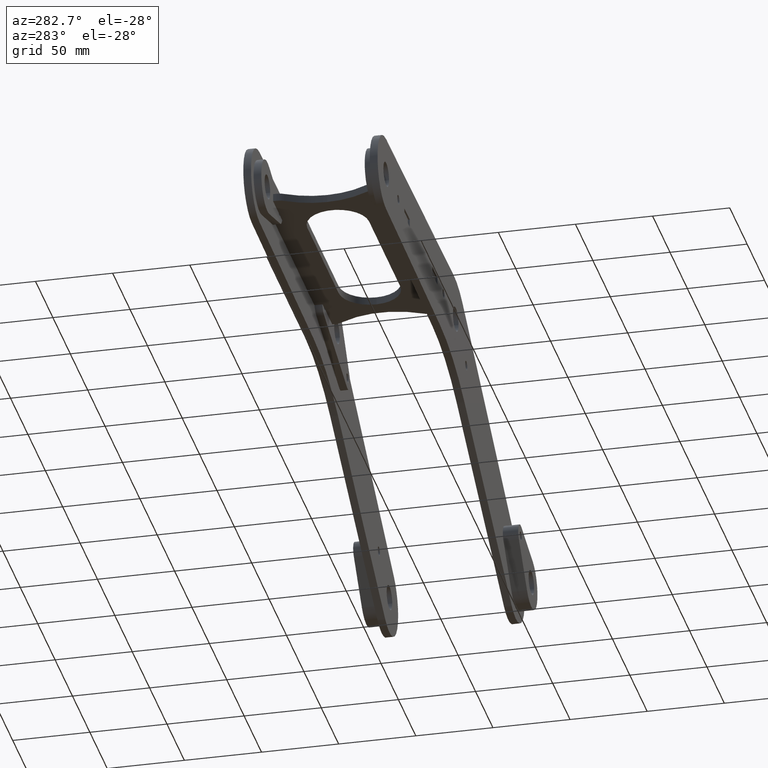
[diagram: clean part render]
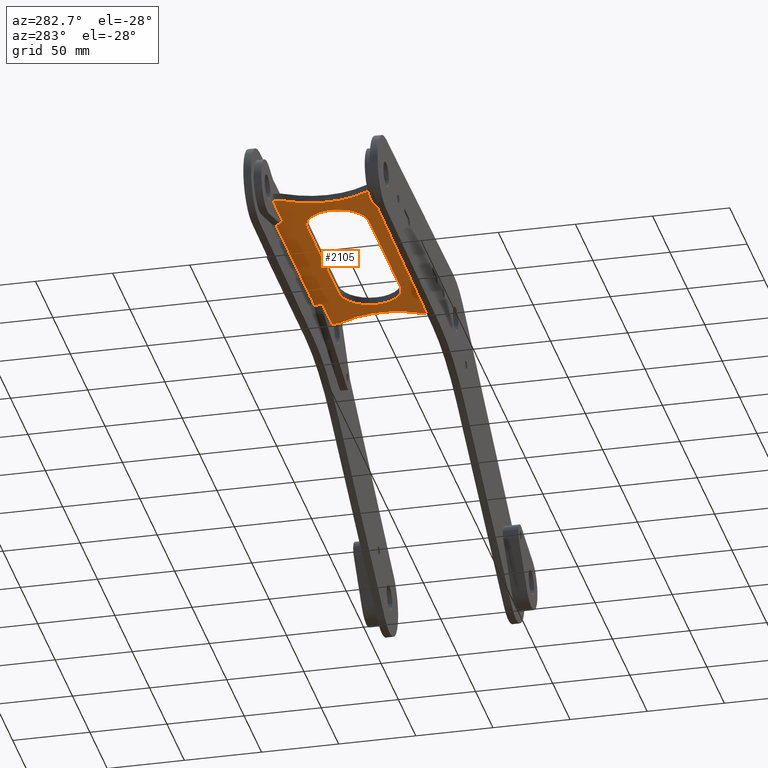
[diagram: same view with one face highlighted and labeled with its STEP entity id]
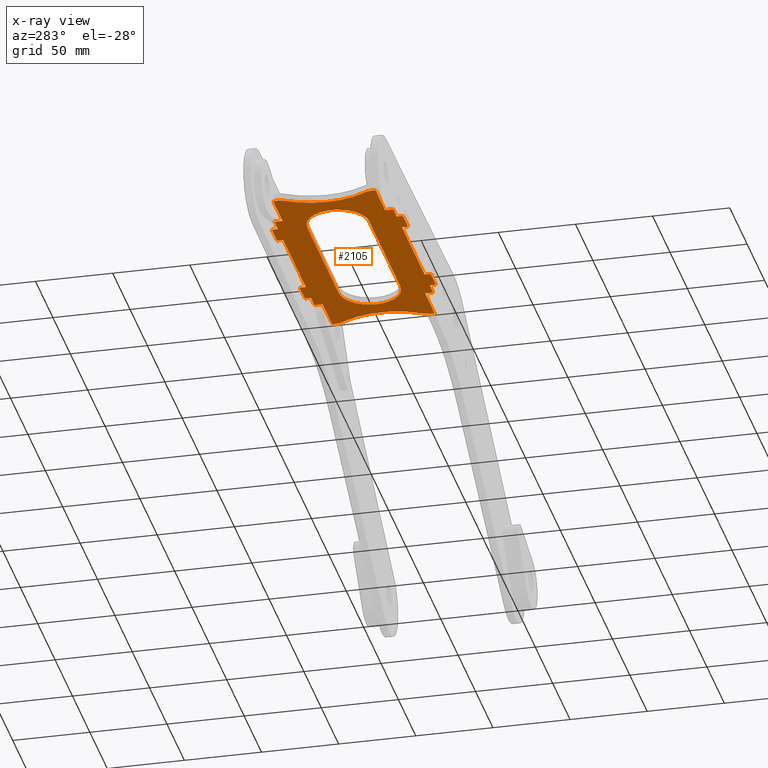
[diagram: x-ray of the same camera — body ghosted, the highlighted face saturated]
A machine part, auxiliary view. The second image highlights one B-rep face of the part: STEP entity #2105.
The next image is the same camera in x-ray: the body ghosted, the highlighted face saturated — about 4% of this face is hidden behind the body in this view.
In plain terms, the highlighted planar face has unit normal (0, 0, -1).
Its self-contained STEP definition (entity closure, byte-faithful):
#17 = LINE ( 'NONE', #369, #3777 ) ;
#22 = EDGE_CURVE ( 'NONE', #690, #3782, #2376, .T. ) ;
#29 = VERTEX_POINT ( 'NONE', #3441 ) ;
#36 = ORIENTED_EDGE ( 'NONE', *, *, #2665, .F. ) ;
#45 = DIRECTION ( 'NONE',  ( 1.000000000000000000, 0.000000000000000000, 0.000000000000000000 ) ) ;
#82 = ORIENTED_EDGE ( 'NONE', *, *, #1933, .T. ) ;
#83 = LINE ( 'NONE', #2133, #453 ) ;
#87 = DIRECTION ( 'NONE',  ( 0.000000000000000000, -1.000000000000000000, 0.000000000000000000 ) ) ;
#89 = CARTESIAN_POINT ( 'NONE',  ( -57.50000000000000711, 38.50000000000000000, -2.500000000000000000 ) ) ;
#109 = DIRECTION ( 'NONE',  ( 1.000000000000000000, 0.000000000000000000, 0.000000000000000000 ) ) ;
#126 = DIRECTION ( 'NONE',  ( 0.000000000000000000, 0.000000000000000000, 1.000000000000000000 ) ) ;
#127 = CARTESIAN_POINT ( 'NONE',  ( 47.50000000000000711, 42.49999999999999289, -2.500000000000000000 ) ) ;
#128 = CARTESIAN_POINT ( 'NONE',  ( 32.50000000000000711, 38.49999999999999289, -2.500000000000000000 ) ) ;
#136 = AXIS2_PLACEMENT_3D ( 'NONE', #1046, #674, #3702 ) ;
#138 = ORIENTED_EDGE ( 'NONE', *, *, #1784, .T. ) ;
#142 = CARTESIAN_POINT ( 'NONE',  ( 57.49999999999999289, 38.50000000000002842, -2.500000000000000000 ) ) ;
#145 = DIRECTION ( 'NONE',  ( -1.000000000000000000, -1.632680918566406547E-16, 0.000000000000000000 ) ) ;
#146 = VERTEX_POINT ( 'NONE', #142 ) ;
#153 = ORIENTED_EDGE ( 'NONE', *, *, #3496, .F. ) ;
#170 = ORIENTED_EDGE ( 'NONE', *, *, #424, .T. ) ;
#171 = CIRCLE ( 'NONE', #2736, 19.99999999999998224 ) ;
#182 = EDGE_CURVE ( 'NONE', #3797, #1893, #4012, .T. ) ;
#183 = CARTESIAN_POINT ( 'NONE',  ( -85.00000000000000000, 38.50000000000000000, -2.500000000000000000 ) ) ;
#193 = CARTESIAN_POINT ( 'NONE',  ( 57.49999999999999289, 38.50000000000002842, -2.500000000000000000 ) ) ;
#221 = CARTESIAN_POINT ( 'NONE',  ( -46.49999999999999289, 42.49999999999998579, -2.500000000000000000 ) ) ;
#237 = CARTESIAN_POINT ( 'NONE',  ( -32.49999999999999289, -41.49999999999999289, -2.500000000000000000 ) ) ;
#239 = EDGE_CURVE ( 'NONE', #4334, #687, #2527, .T. ) ;
#260 = CARTESIAN_POINT ( 'NONE',  ( 57.49999999999999289, -38.50000000000002842, -2.500000000000000000 ) ) ;
#271 = VERTEX_POINT ( 'NONE', #3844 ) ;
#279 = VERTEX_POINT ( 'NONE', #2148 ) ;
#286 = CARTESIAN_POINT ( 'NONE',  ( -32.49999999999999289, 42.49999999999999289, -2.500000000000000000 ) ) ;
#321 = CARTESIAN_POINT ( 'NONE',  ( 32.50000000000000711, 42.49999999999999289, -2.500000000000000000 ) ) ;
#322 = CARTESIAN_POINT ( 'NONE',  ( 85.00000000000000000, -33.19999999999997442, -2.500000000000000000 ) ) ;
#330 = EDGE_CURVE ( 'NONE', #640, #2117, #963, .T. ) ;
#334 = CARTESIAN_POINT ( 'NONE',  ( -32.49999999999999289, 41.49999999999999289, -2.500000000000000000 ) ) ;
#342 = EDGE_CURVE ( 'NONE', #1579, #2458, #680, .T. ) ;
#369 = CARTESIAN_POINT ( 'NONE',  ( -57.50000000000000711, 38.50000000000000000, -2.500000000000000000 ) ) ;
#385 = VERTEX_POINT ( 'NONE', #2281 ) ;
#391 = ORIENTED_EDGE ( 'NONE', *, *, #3876, .F. ) ;
#395 = DIRECTION ( 'NONE',  ( 1.000000000000000000, 1.927470528863120281E-16, 0.000000000000000000 ) ) ;
#400 = VERTEX_POINT ( 'NONE', #4014 ) ;
#419 = CIRCLE ( 'NONE', #1136, 1.000000000000000888 ) ;
#424 = EDGE_CURVE ( 'NONE', #2117, #876, #171, .T. ) ;
#437 = CARTESIAN_POINT ( 'NONE',  ( -84.99999999999997158, -31.13623632201861113, -2.500000000000000000 ) ) ;
#445 = VECTOR ( 'NONE', #1339, 1000.000000000000000 ) ;
#453 = VECTOR ( 'NONE', #145, 1000.000000000000000 ) ;
#467 = EDGE_CURVE ( 'NONE', #1859, #855, #3447, .T. ) ;
#478 = CARTESIAN_POINT ( 'NONE',  ( 44.99999999999997158, 3.081487911019577365E-30, -2.500000000000000000 ) ) ;
#484 = ORIENTED_EDGE ( 'NONE', *, *, #1952, .F. ) ;
#524 = VERTEX_POINT ( 'NONE', #819 ) ;
#545 = LINE ( 'NONE', #2907, #750 ) ;
#546 = EDGE_CURVE ( 'NONE', #2139, #1084, #545, .T. ) ;
#547 = DIRECTION ( 'NONE',  ( 0.000000000000000000, 0.000000000000000000, 1.000000000000000000 ) ) ;
#548 = CARTESIAN_POINT ( 'NONE',  ( -84.99999999999998579, -33.20000000000000284, -2.500000000000000000 ) ) ;
#554 = VERTEX_POINT ( 'NONE', #3533 ) ;
#567 = B_SPLINE_CURVE_WITH_KNOTS ( 'NONE', 1,
 ( #3200, #1863 ),
 .UNSPECIFIED., .F., .F.,
 ( 2, 2 ),
 ( 0.1500000000000000222, 0.4749999999999999778 ),
 .UNSPECIFIED. ) ;
#586 = CARTESIAN_POINT ( 'NONE',  ( 47.50000000000000711, -38.49999999999997868, -2.500000000000000000 ) ) ;
#605 = CARTESIAN_POINT ( 'NONE',  ( 85.00000000000000000, 38.50000000000002842, -2.500000000000000000 ) ) ;
#609 = LINE ( 'NONE', #4400, #445 ) ;
#640 = VERTEX_POINT ( 'NONE', #947 ) ;
#651 = CARTESIAN_POINT ( 'NONE',  ( 83.54812323082840919, -25.94686360168222095, -2.500000000000000000 ) ) ;
#661 = CARTESIAN_POINT ( 'NONE',  ( 85.00000000000000000, -33.19999999999997442, -2.500000000000000000 ) ) ;
#674 = DIRECTION ( 'NONE',  ( 0.000000000000000000, 0.000000000000000000, 1.000000000000000000 ) ) ;
#677 = VERTEX_POINT ( 'NONE', #4383 ) ;
#680 = CIRCLE ( 'NONE', #1234, 50.00000000000000000 ) ;
#687 = VERTEX_POINT ( 'NONE', #1404 ) ;
#688 = PLANE ( 'NONE',  #3931 ) ;
#690 = VERTEX_POINT ( 'NONE', #2993 ) ;
#702 = DIRECTION ( 'NONE',  ( 1.000000000000000000, 0.000000000000000000, 0.000000000000000000 ) ) ;
#709 = CIRCLE ( 'NONE', #2905, 9.999999999999994671 ) ;
#741 = CARTESIAN_POINT ( 'NONE',  ( 47.50000000000000711, 38.49999999999999289, -2.500000000000000000 ) ) ;
#742 = VECTOR ( 'NONE', #2866, 1000.000000000000000 ) ;
#745 = VECTOR ( 'NONE', #1146, 1000.000000000000000 ) ;
#746 = ORIENTED_EDGE ( 'NONE', *, *, #782, .T. ) ;
#748 = CARTESIAN_POINT ( 'NONE',  ( -46.49999999999999289, -42.49999999999998579, -2.500000000000000000 ) ) ;
#750 = VECTOR ( 'NONE', #3870, 1000.000000000000000 ) ;
#754 = VERTEX_POINT ( 'NONE', #748 ) ;
#770 = CARTESIAN_POINT ( 'NONE',  ( 46.50000000000000711, -41.49999999999999289, -2.500000000000000000 ) ) ;
#773 = DIRECTION ( 'NONE',  ( 1.000000000000000000, 0.000000000000000000, 0.000000000000000000 ) ) ;
#775 = CARTESIAN_POINT ( 'NONE',  ( -33.49999999999999289, 41.49999999999999289, -2.500000000000000000 ) ) ;
#782 = EDGE_CURVE ( 'NONE', #524, #385, #1649, .T. ) ;
#790 = CARTESIAN_POINT ( 'NONE',  ( 75.00000000000001421, 31.13623632201864666, -2.500000000000000000 ) ) ;
#793 = CARTESIAN_POINT ( 'NONE',  ( -83.54812323082838077, -25.94686360168217831, -2.500000000000000000 ) ) ;
#801 = ORIENTED_EDGE ( 'NONE', *, *, #1788, .T. ) ;
#819 = CARTESIAN_POINT ( 'NONE',  ( -83.54812323082839498, 25.94686360168220318, -2.500000000000000000 ) ) ;
#820 = LINE ( 'NONE', #4203, #2011 ) ;
#840 = CARTESIAN_POINT ( 'NONE',  ( -46.49999999999999289, 41.49999999999999289, -2.500000000000000000 ) ) ;
#855 = VERTEX_POINT ( 'NONE', #1763 ) ;
#861 = DIRECTION ( 'NONE',  ( 1.000000000000000000, 0.000000000000000000, 0.000000000000000000 ) ) ;
#869 = VECTOR ( 'NONE', #1350, 1000.000000000000000 ) ;
#875 = AXIS2_PLACEMENT_3D ( 'NONE', #775, #126, #109 ) ;
#876 = VERTEX_POINT ( 'NONE', #3187 ) ;
#878 = CARTESIAN_POINT ( 'NONE',  ( 75.00000000000001421, -31.13623632201866798, -2.500000000000000000 ) ) ;
#879 = ORIENTED_EDGE ( 'NONE', *, *, #2815, .F. ) ;
#898 = DIRECTION ( 'NONE',  ( 0.000000000000000000, 0.000000000000000000, 1.000000000000000000 ) ) ;
#922 = LINE ( 'NONE', #3555, #3012 ) ;
#923 = EDGE_LOOP ( 'NONE', ( #170, #1947, #801, #3424, #3139 ) ) ;
#940 = VECTOR ( 'NONE', #3220, 1000.000000000000000 ) ;
#943 = DIRECTION ( 'NONE',  ( 1.000000000000000000, 0.000000000000000000, 0.000000000000000000 ) ) ;
#947 = CARTESIAN_POINT ( 'NONE',  ( 44.99999999999995737, 20.00000000000000000, -2.500000000000000000 ) ) ;
#948 = CARTESIAN_POINT ( 'NONE',  ( 33.50000000000000711, -42.49999999999998579, -2.500000000000000000 ) ) ;
#949 = VECTOR ( 'NONE', #943, 1000.000000000000000 ) ;
#963 = LINE ( 'NONE', #1653, #3162 ) ;
#971 = FACE_OUTER_BOUND ( 'NONE', #2240, .T. ) ;
#996 = CARTESIAN_POINT ( 'NONE',  ( 46.50000000000000711, -42.49999999999998579, -2.500000000000000000 ) ) ;
#1001 = CARTESIAN_POINT ( 'NONE',  ( -126.2887393849703415, 0.000000000000000000, -2.500000000000000000 ) ) ;
#1005 = EDGE_CURVE ( 'NONE', #3328, #29, #2943, .T. ) ;
#1018 = CIRCLE ( 'NONE', #3287, 19.99999999999997513 ) ;
#1019 = LINE ( 'NONE', #2403, #3550 ) ;
#1046 = CARTESIAN_POINT ( 'NONE',  ( -126.2887393849703415, 0.000000000000000000, -2.500000000000000000 ) ) ;
#1058 = DIRECTION ( 'NONE',  ( 1.000000000000000000, -0.000000000000000000, -0.000000000000000000 ) ) ;
#1067 = CARTESIAN_POINT ( 'NONE',  ( -47.49999999999999289, 38.49999999999999289, -2.500000000000000000 ) ) ;
#1077 = ORIENTED_EDGE ( 'NONE', *, *, #342, .F. ) ;
#1084 = VERTEX_POINT ( 'NONE', #2721 ) ;
#1088 = LINE ( 'NONE', #2429, #3999 ) ;
#1098 = CARTESIAN_POINT ( 'NONE',  ( 57.49999999999999289, -33.19999999999997442, -2.500000000000000000 ) ) ;
#1100 = CIRCLE ( 'NONE', #3225, 9.999999999999994671 ) ;
#1110 = LINE ( 'NONE', #2152, #742 ) ;
#1113 = DIRECTION ( 'NONE',  ( 1.000000000000000000, 1.632680918566406793E-16, -0.000000000000000000 ) ) ;
#1119 = DIRECTION ( 'NONE',  ( 0.000000000000000000, -0.000000000000000000, -1.000000000000000000 ) ) ;
#1136 = AXIS2_PLACEMENT_3D ( 'NONE', #2357, #2426, #45 ) ;
#1140 = CARTESIAN_POINT ( 'NONE',  ( 85.00000000000000000, 38.50000000000002842, -2.500000000000000000 ) ) ;
#1146 = DIRECTION ( 'NONE',  ( 1.000000000000000000, 0.000000000000000000, 0.000000000000000000 ) ) ;
#1153 = CARTESIAN_POINT ( 'NONE',  ( -44.99999999999997158, -19.99999999999998224, -2.500000000000000000 ) ) ;
#1181 = DIRECTION ( 'NONE',  ( 1.000000000000000000, 1.632680918566406793E-16, -0.000000000000000000 ) ) ;
#1183 = CARTESIAN_POINT ( 'NONE',  ( -47.49999999999999289, 41.49999999999999289, -2.500000000000000000 ) ) ;
#1191 = ORIENTED_EDGE ( 'NONE', *, *, #1834, .F. ) ;
#1205 = ORIENTED_EDGE ( 'NONE', *, *, #2109, .F. ) ;
#1225 = VECTOR ( 'NONE', #87, 1000.000000000000000 ) ;
#1234 = AXIS2_PLACEMENT_3D ( 'NONE', #3946, #3924, #3988 ) ;
#1247 = ORIENTED_EDGE ( 'NONE', *, *, #1005, .F. ) ;
#1249 = CARTESIAN_POINT ( 'NONE',  ( -84.99999999999998579, 33.20000000000000284, -2.500000000000000000 ) ) ;
#1255 = ORIENTED_EDGE ( 'NONE', *, *, #3279, .F. ) ;
#1256 = VERTEX_POINT ( 'NONE', #334 ) ;
#1261 = LINE ( 'NONE', #1908, #2377 ) ;
#1278 = EDGE_CURVE ( 'NONE', #754, #2278, #1797, .T. ) ;
#1286 = ORIENTED_EDGE ( 'NONE', *, *, #2544, .F. ) ;
#1312 = EDGE_CURVE ( 'NONE', #2587, #4017, #1759, .T. ) ;
#1320 = ORIENTED_EDGE ( 'NONE', *, *, #1963, .T. ) ;
#1325 = DIRECTION ( 'NONE',  ( 0.000000000000000000, -1.000000000000000000, 0.000000000000000000 ) ) ;
#1339 = DIRECTION ( 'NONE',  ( 0.000000000000000000, -1.000000000000000000, 0.000000000000000000 ) ) ;
#1347 = ORIENTED_EDGE ( 'NONE', *, *, #4250, .T. ) ;
#1350 = DIRECTION ( 'NONE',  ( 0.000000000000000000, -1.000000000000000000, 0.000000000000000000 ) ) ;
#1356 = CARTESIAN_POINT ( 'NONE',  ( -46.49999999999999289, -41.49999999999999289, -2.500000000000000000 ) ) ;
#1370 = VERTEX_POINT ( 'NONE', #1098 ) ;
#1381 = VECTOR ( 'NONE', #1058, 1000.000000000000000 ) ;
#1383 = VERTEX_POINT ( 'NONE', #741 ) ;
#1404 = CARTESIAN_POINT ( 'NONE',  ( -57.50000000000000711, 33.20000000000000284, -2.500000000000000000 ) ) ;
#1406 = DIRECTION ( 'NONE',  ( -1.000000000000000000, 0.000000000000000000, 0.000000000000000000 ) ) ;
#1420 = CARTESIAN_POINT ( 'NONE',  ( 46.50000000000000711, 42.49999999999998579, -2.500000000000000000 ) ) ;
#1449 = VECTOR ( 'NONE', #773, 1000.000000000000000 ) ;
#1455 = CARTESIAN_POINT ( 'NONE',  ( 44.99999999999997158, 3.081487911019577365E-30, -2.500000000000000000 ) ) ;
#1457 = DIRECTION ( 'NONE',  ( 1.000000000000000000, 0.000000000000000000, 0.000000000000000000 ) ) ;
#1463 = CARTESIAN_POINT ( 'NONE',  ( 33.50000000000000711, -42.49999999999998579, -2.500000000000000000 ) ) ;
#1469 = VERTEX_POINT ( 'NONE', #3652 ) ;
#1480 = VERTEX_POINT ( 'NONE', #2581 ) ;
#1487 = LINE ( 'NONE', #127, #1225 ) ;
#1503 = VERTEX_POINT ( 'NONE', #1183 ) ;
#1515 = AXIS2_PLACEMENT_3D ( 'NONE', #3459, #3565, #2896 ) ;
#1523 = AXIS2_PLACEMENT_3D ( 'NONE', #3242, #898, #3262 ) ;
#1542 = ORIENTED_EDGE ( 'NONE', *, *, #2114, .T. ) ;
#1562 = CARTESIAN_POINT ( 'NONE',  ( -44.99999999999997158, -1.653273178848925447E-14, -2.500000000000000000 ) ) ;
#1579 = VERTEX_POINT ( 'NONE', #651 ) ;
#1624 = CIRCLE ( 'NONE', #136, 50.00000000000000000 ) ;
#1628 = DIRECTION ( 'NONE',  ( -1.802310104910968394E-16, 1.000000000000000000, -0.000000000000000000 ) ) ;
#1649 = CIRCLE ( 'NONE', #3923, 9.999999999999994671 ) ;
#1653 = CARTESIAN_POINT ( 'NONE',  ( -44.99999999999997158, 19.99999999999998224, -2.500000000000000000 ) ) ;
#1655 = CIRCLE ( 'NONE', #2579, 1.000000000000000888 ) ;
#1656 = LINE ( 'NONE', #321, #1939 ) ;
#1676 = EDGE_CURVE ( 'NONE', #1256, #400, #3337, .T. ) ;
#1680 = EDGE_CURVE ( 'NONE', #271, #524, #3927, .T. ) ;
#1685 = DIRECTION ( 'NONE',  ( 1.000000000000000000, 0.000000000000000000, 0.000000000000000000 ) ) ;
#1717 = ORIENTED_EDGE ( 'NONE', *, *, #3463, .F. ) ;
#1759 = LINE ( 'NONE', #1140, #2649 ) ;
#1763 = CARTESIAN_POINT ( 'NONE',  ( 32.50000000000000711, 41.49999999999999289, -2.500000000000000000 ) ) ;
#1771 = VECTOR ( 'NONE', #2246, 1000.000000000000000 ) ;
#1772 = LINE ( 'NONE', #3824, #2169 ) ;
#1776 = DIRECTION ( 'NONE',  ( -0.000000000000000000, 1.000000000000000000, -0.000000000000000000 ) ) ;
#1784 = EDGE_CURVE ( 'NONE', #279, #1480, #1088, .T. ) ;
#1788 = EDGE_CURVE ( 'NONE', #3138, #3446, #1018, .T. ) ;
#1795 = CARTESIAN_POINT ( 'NONE',  ( -74.99999999999998579, -31.13623632201861113, -2.500000000000000000 ) ) ;
#1797 = CIRCLE ( 'NONE', #2719, 1.000000000000000888 ) ;
#1808 = CIRCLE ( 'NONE', #3511, 9.999999999999994671 ) ;
#1815 = EDGE_CURVE ( 'NONE', #4156, #1383, #1487, .T. ) ;
#1824 = ORIENTED_EDGE ( 'NONE', *, *, #467, .F. ) ;
#1834 = EDGE_CURVE ( 'NONE', #554, #1480, #820, .T. ) ;
#1836 = DIRECTION ( 'NONE',  ( 3.604620209821936788E-16, -1.000000000000000000, 0.000000000000000000 ) ) ;
#1841 = EDGE_CURVE ( 'NONE', #876, #3138, #3449, .T. ) ;
#1859 = VERTEX_POINT ( 'NONE', #2469 ) ;
#1863 = CARTESIAN_POINT ( 'NONE',  ( 46.50000000000000711, 42.49999999999998579, -2.500000000000000000 ) ) ;
#1882 = VERTEX_POINT ( 'NONE', #237 ) ;
#1893 = VERTEX_POINT ( 'NONE', #3622 ) ;
#1908 = CARTESIAN_POINT ( 'NONE',  ( 85.00000000000001421, -38.49999999999997158, -2.500000000000000000 ) ) ;
#1922 = DIRECTION ( 'NONE',  ( 0.000000000000000000, -0.000000000000000000, -1.000000000000000000 ) ) ;
#1927 = CARTESIAN_POINT ( 'NONE',  ( -47.49999999999999289, -42.49999999999999289, -2.500000000000000000 ) ) ;
#1933 = EDGE_CURVE ( 'NONE', #2567, #279, #2868, .T. ) ;
#1934 = CARTESIAN_POINT ( 'NONE',  ( 57.49999999999999289, -38.50000000000002842, -2.500000000000000000 ) ) ;
#1939 = VECTOR ( 'NONE', #4018, 1000.000000000000000 ) ;
#1942 = ORIENTED_EDGE ( 'NONE', *, *, #2915, .T. ) ;
#1945 = EDGE_CURVE ( 'NONE', #1469, #3782, #3891, .T. ) ;
#1947 = ORIENTED_EDGE ( 'NONE', *, *, #1841, .T. ) ;
#1949 = AXIS2_PLACEMENT_3D ( 'NONE', #770, #2194, #1457 ) ;
#1952 = EDGE_CURVE ( 'NONE', #3658, #1503, #1655, .T. ) ;
#1961 = DIRECTION ( 'NONE',  ( 0.000000000000000000, 0.000000000000000000, 1.000000000000000000 ) ) ;
#1963 = EDGE_CURVE ( 'NONE', #146, #690, #2224, .T. ) ;
#1971 = CARTESIAN_POINT ( 'NONE',  ( -44.99999999999997158, 19.99999999999998224, -2.500000000000000000 ) ) ;
#1996 = CARTESIAN_POINT ( 'NONE',  ( -57.50000000000000711, -38.50000000000000000, -2.500000000000000000 ) ) ;
#2000 = CARTESIAN_POINT ( 'NONE',  ( 47.50000000000000711, -41.49999999999999289, -2.500000000000000000 ) ) ;
#2008 = AXIS2_PLACEMENT_3D ( 'NONE', #1001, #2386, #1685 ) ;
#2011 = VECTOR ( 'NONE', #1113, 1000.000000000000000 ) ;
#2027 = ORIENTED_EDGE ( 'NONE', *, *, #3369, .F. ) ;
#2030 = EDGE_CURVE ( 'NONE', #3714, #1370, #2994, .T. ) ;
#2049 = ORIENTED_EDGE ( 'NONE', *, *, #4199, .F. ) ;
#2073 = ORIENTED_EDGE ( 'NONE', *, *, #3838, .T. ) ;
#2105 = ADVANCED_FACE ( 'NONE', ( #2641, #971 ), #688, .T. ) ;
#2109 = EDGE_CURVE ( 'NONE', #2567, #1893, #3416, .T. ) ;
#2114 = EDGE_CURVE ( 'NONE', #3658, #2710, #4212, .T. ) ;
#2116 = ORIENTED_EDGE ( 'NONE', *, *, #1676, .T. ) ;
#2117 = VERTEX_POINT ( 'NONE', #1971 ) ;
#2133 = CARTESIAN_POINT ( 'NONE',  ( 85.00000000000000000, 38.50000000000002842, -2.500000000000000000 ) ) ;
#2134 = ORIENTED_EDGE ( 'NONE', *, *, #2771, .F. ) ;
#2139 = VERTEX_POINT ( 'NONE', #1996 ) ;
#2148 = CARTESIAN_POINT ( 'NONE',  ( 32.50000000000000711, -41.49999999999999289, -2.500000000000000000 ) ) ;
#2152 = CARTESIAN_POINT ( 'NONE',  ( 85.00000000000000000, 38.50000000000002842, -2.500000000000000000 ) ) ;
#2169 = VECTOR ( 'NONE', #1836, 1000.000000000000000 ) ;
#2194 = DIRECTION ( 'NONE',  ( 0.000000000000000000, -0.000000000000000000, -1.000000000000000000 ) ) ;
#2223 = EDGE_CURVE ( 'NONE', #2906, #3714, #1261, .T. ) ;
#2224 = LINE ( 'NONE', #193, #3435 ) ;
#2229 = VECTOR ( 'NONE', #4065, 1000.000000000000000 ) ;
#2234 = ORIENTED_EDGE ( 'NONE', *, *, #1680, .T. ) ;
#2240 = EDGE_LOOP ( 'NONE', ( #1077, #1942, #1247, #2885, #2617, #4009, #391, #3972, #1205, #82, #138, #1191, #2472, #1347, #36, #2963, #3784, #4382, #2049, #2134, #2768, #3529, #2073, #2234, #746, #153, #2731, #3131, #4346, #2027, #484, #1542, #1286, #2116, #2988, #1255, #1824, #4280, #1717, #4171, #879, #1320, #2285, #2735, #3944 ) ) ;
#2246 = DIRECTION ( 'NONE',  ( -0.000000000000000000, 1.000000000000000000, -0.000000000000000000 ) ) ;
#2278 = VERTEX_POINT ( 'NONE', #2875 ) ;
#2281 = CARTESIAN_POINT ( 'NONE',  ( -85.00000000000000000, 31.13623632201864311, -2.500000000000000000 ) ) ;
#2285 = ORIENTED_EDGE ( 'NONE', *, *, #22, .T. ) ;
#2324 = VERTEX_POINT ( 'NONE', #3204 ) ;
#2333 = DIRECTION ( 'NONE',  ( -1.000000000000000000, 0.000000000000000000, 0.000000000000000000 ) ) ;
#2334 = DIRECTION ( 'NONE',  ( 0.000000000000000000, 0.000000000000000000, -1.000000000000000000 ) ) ;
#2357 = CARTESIAN_POINT ( 'NONE',  ( -33.49999999999999289, -41.49999999999999289, -2.500000000000000000 ) ) ;
#2376 = LINE ( 'NONE', #4087, #1381 ) ;
#2377 = VECTOR ( 'NONE', #1181, 1000.000000000000000 ) ;
#2386 = DIRECTION ( 'NONE',  ( 0.000000000000000000, 0.000000000000000000, 1.000000000000000000 ) ) ;
#2402 = CARTESIAN_POINT ( 'NONE',  ( -46.49999999999999289, 42.49999999999998579, -2.500000000000000000 ) ) ;
#2403 = CARTESIAN_POINT ( 'NONE',  ( -57.50000000000000711, -38.50000000000000000, -2.500000000000000000 ) ) ;
#2421 = CARTESIAN_POINT ( 'NONE',  ( 64.99999999999995737, 3.081487911019577365E-30, -2.500000000000000000 ) ) ;
#2426 = DIRECTION ( 'NONE',  ( 0.000000000000000000, -0.000000000000000000, -1.000000000000000000 ) ) ;
#2429 = CARTESIAN_POINT ( 'NONE',  ( 32.50000000000000711, -42.49999999999999289, -2.500000000000000000 ) ) ;
#2458 = VERTEX_POINT ( 'NONE', #2712 ) ;
#2469 = CARTESIAN_POINT ( 'NONE',  ( 33.50000000000000711, 42.49999999999998579, -2.500000000000000000 ) ) ;
#2472 = ORIENTED_EDGE ( 'NONE', *, *, #2941, .F. ) ;
#2480 = LINE ( 'NONE', #183, #2509 ) ;
#2509 = VECTOR ( 'NONE', #3125, 1000.000000000000000 ) ;
#2527 = LINE ( 'NONE', #3548, #745 ) ;
#2530 = LINE ( 'NONE', #3174, #1449 ) ;
#2533 = CARTESIAN_POINT ( 'NONE',  ( 85.00000000000000000, 38.50000000000002842, -2.500000000000000000 ) ) ;
#2544 = EDGE_CURVE ( 'NONE', #1256, #2710, #4151, .T. ) ;
#2567 = VERTEX_POINT ( 'NONE', #1463 ) ;
#2579 = AXIS2_PLACEMENT_3D ( 'NONE', #840, #547, #4248 ) ;
#2581 = CARTESIAN_POINT ( 'NONE',  ( 32.50000000000000711, -38.49999999999997868, -2.500000000000000000 ) ) ;
#2587 = VERTEX_POINT ( 'NONE', #1067 ) ;
#2617 = ORIENTED_EDGE ( 'NONE', *, *, #2030, .F. ) ;
#2625 = VECTOR ( 'NONE', #3468, 1000.000000000000000 ) ;
#2641 = FACE_BOUND ( 'NONE', #923, .T. ) ;
#2649 = VECTOR ( 'NONE', #2876, 1000.000000000000000 ) ;
#2665 = EDGE_CURVE ( 'NONE', #754, #2324, #3393, .T. ) ;
#2704 = EDGE_CURVE ( 'NONE', #3943, #4053, #1772, .T. ) ;
#2710 = VERTEX_POINT ( 'NONE', #3530 ) ;
#2712 = CARTESIAN_POINT ( 'NONE',  ( 83.54812323082839498, 25.94686360168220318, -2.500000000000000000 ) ) ;
#2718 = EDGE_CURVE ( 'NONE', #3943, #2822, #1100, .T. ) ;
#2719 = AXIS2_PLACEMENT_3D ( 'NONE', #1356, #1119, #2856 ) ;
#2721 = CARTESIAN_POINT ( 'NONE',  ( -47.49999999999998579, -38.49999999999999289, -2.500000000000000000 ) ) ;
#2723 = CIRCLE ( 'NONE', #1515, 1.000000000000000888 ) ;
#2731 = ORIENTED_EDGE ( 'NONE', *, *, #239, .T. ) ;
#2732 = CARTESIAN_POINT ( 'NONE',  ( 0.000000000000000000, 0.000000000000000000, -2.500000000000000000 ) ) ;
#2735 = ORIENTED_EDGE ( 'NONE', *, *, #1945, .F. ) ;
#2736 = AXIS2_PLACEMENT_3D ( 'NONE', #1562, #1961, #2921 ) ;
#2768 = ORIENTED_EDGE ( 'NONE', *, *, #2704, .F. ) ;
#2771 = EDGE_CURVE ( 'NONE', #4053, #677, #2530, .T. ) ;
#2797 = EDGE_CURVE ( 'NONE', #3894, #400, #83, .T. ) ;
#2805 = CARTESIAN_POINT ( 'NONE',  ( -33.49999999999999289, -42.49999999999998579, -2.500000000000000000 ) ) ;
#2815 = EDGE_CURVE ( 'NONE', #146, #1383, #1110, .T. ) ;
#2822 = VERTEX_POINT ( 'NONE', #793 ) ;
#2824 = DIRECTION ( 'NONE',  ( 0.000000000000000000, -0.000000000000000000, -1.000000000000000000 ) ) ;
#2848 = CARTESIAN_POINT ( 'NONE',  ( -46.49999999999999289, -42.49999999999998579, -2.500000000000000000 ) ) ;
#2856 = DIRECTION ( 'NONE',  ( 1.000000000000000000, 0.000000000000000000, 0.000000000000000000 ) ) ;
#2866 = DIRECTION ( 'NONE',  ( -1.000000000000000000, -1.632680918566406547E-16, 0.000000000000000000 ) ) ;
#2868 = CIRCLE ( 'NONE', #3218, 1.000000000000000888 ) ;
#2875 = CARTESIAN_POINT ( 'NONE',  ( -47.49999999999999289, -41.49999999999999289, -2.500000000000000000 ) ) ;
#2876 = DIRECTION ( 'NONE',  ( -1.000000000000000000, -1.632680918566406547E-16, 0.000000000000000000 ) ) ;
#2885 = ORIENTED_EDGE ( 'NONE', *, *, #3132, .F. ) ;
#2896 = DIRECTION ( 'NONE',  ( 1.000000000000000000, 0.000000000000000000, 0.000000000000000000 ) ) ;
#2905 = AXIS2_PLACEMENT_3D ( 'NONE', #790, #3481, #1406 ) ;
#2906 = VERTEX_POINT ( 'NONE', #586 ) ;
#2907 = CARTESIAN_POINT ( 'NONE',  ( 85.00000000000001421, -38.49999999999997158, -2.500000000000000000 ) ) ;
#2915 = EDGE_CURVE ( 'NONE', #1579, #29, #1808, .T. ) ;
#2921 = DIRECTION ( 'NONE',  ( 1.000000000000000000, 0.000000000000000000, 0.000000000000000000 ) ) ;
#2924 = DIRECTION ( 'NONE',  ( -1.000000000000000000, 0.000000000000000000, 0.000000000000000000 ) ) ;
#2941 = EDGE_CURVE ( 'NONE', #1882, #554, #922, .T. ) ;
#2943 = LINE ( 'NONE', #605, #4139 ) ;
#2963 = ORIENTED_EDGE ( 'NONE', *, *, #1278, .T. ) ;
#2973 = LINE ( 'NONE', #1927, #1771 ) ;
#2988 = ORIENTED_EDGE ( 'NONE', *, *, #2797, .F. ) ;
#2993 = CARTESIAN_POINT ( 'NONE',  ( 57.49999999999999289, 33.19999999999997442, -2.500000000000000000 ) ) ;
#2994 = LINE ( 'NONE', #260, #2229 ) ;
#3012 = VECTOR ( 'NONE', #3929, 1000.000000000000000 ) ;
#3077 = VECTOR ( 'NONE', #395, 1000.000000000000000 ) ;
#3108 = DIRECTION ( 'NONE',  ( -1.000000000000000000, 0.000000000000000000, 0.000000000000000000 ) ) ;
#3111 = DIRECTION ( 'NONE',  ( 1.000000000000000000, 0.000000000000000000, 0.000000000000000000 ) ) ;
#3112 = CARTESIAN_POINT ( 'NONE',  ( 85.00000000000000000, 33.19999999999997442, -2.500000000000000000 ) ) ;
#3125 = DIRECTION ( 'NONE',  ( 3.604620209821936788E-16, -1.000000000000000000, 0.000000000000000000 ) ) ;
#3131 = ORIENTED_EDGE ( 'NONE', *, *, #4186, .T. ) ;
#3132 = EDGE_CURVE ( 'NONE', #1370, #3328, #4060, .T. ) ;
#3138 = VERTEX_POINT ( 'NONE', #3419 ) ;
#3139 = ORIENTED_EDGE ( 'NONE', *, *, #330, .T. ) ;
#3162 = VECTOR ( 'NONE', #3255, 1000.000000000000000 ) ;
#3174 = CARTESIAN_POINT ( 'NONE',  ( -84.99999999999998579, -33.20000000000000284, -2.500000000000000000 ) ) ;
#3187 = CARTESIAN_POINT ( 'NONE',  ( -44.99999999999997158, -19.99999999999998224, -2.500000000000000000 ) ) ;
#3200 = CARTESIAN_POINT ( 'NONE',  ( 33.50000000000000711, 42.49999999999998579, -2.500000000000000000 ) ) ;
#3204 = CARTESIAN_POINT ( 'NONE',  ( -33.49999999999999289, -42.49999999999998579, -2.500000000000000000 ) ) ;
#3218 = AXIS2_PLACEMENT_3D ( 'NONE', #3933, #3601, #861 ) ;
#3220 = DIRECTION ( 'NONE',  ( -1.802310104910968394E-16, 1.000000000000000000, -0.000000000000000000 ) ) ;
#3225 = AXIS2_PLACEMENT_3D ( 'NONE', #1795, #2824, #3108 ) ;
#3242 = CARTESIAN_POINT ( 'NONE',  ( 33.50000000000000711, 41.49999999999999289, -2.500000000000000000 ) ) ;
#3255 = DIRECTION ( 'NONE',  ( -1.000000000000000000, -1.927470528863120528E-16, -0.000000000000000000 ) ) ;
#3262 = DIRECTION ( 'NONE',  ( 1.000000000000000000, 0.000000000000000000, 0.000000000000000000 ) ) ;
#3279 = EDGE_CURVE ( 'NONE', #855, #3894, #1656, .T. ) ;
#3287 = AXIS2_PLACEMENT_3D ( 'NONE', #478, #3514, #3111 ) ;
#3288 = CARTESIAN_POINT ( 'NONE',  ( 47.50000000000000711, 41.49999999999999289, -2.500000000000000000 ) ) ;
#3328 = VERTEX_POINT ( 'NONE', #661 ) ;
#3337 = LINE ( 'NONE', #286, #869 ) ;
#3360 = AXIS2_PLACEMENT_3D ( 'NONE', #1455, #4174, #702 ) ;
#3369 = EDGE_CURVE ( 'NONE', #1503, #2587, #609, .T. ) ;
#3379 = DIRECTION ( 'NONE',  ( -0.000000000000000000, 1.000000000000000000, -0.000000000000000000 ) ) ;
#3388 = EDGE_CURVE ( 'NONE', #3446, #640, #4288, .T. ) ;
#3393 = B_SPLINE_CURVE_WITH_KNOTS ( 'NONE', 1,
 ( #2848, #2805 ),
 .UNSPECIFIED., .F., .F.,
 ( 2, 2 ),
 ( 0.1500000000000000222, 0.4749999999999999778 ),
 .UNSPECIFIED. ) ;
#3416 = B_SPLINE_CURVE_WITH_KNOTS ( 'NONE', 1,
 ( #948, #996 ),
 .UNSPECIFIED., .F., .F.,
 ( 2, 2 ),
 ( 0.1500000000000000222, 0.4749999999999999778 ),
 .UNSPECIFIED. ) ;
#3419 = CARTESIAN_POINT ( 'NONE',  ( 44.99999999999998579, -19.99999999999996803, -2.500000000000000000 ) ) ;
#3424 = ORIENTED_EDGE ( 'NONE', *, *, #3388, .T. ) ;
#3435 = VECTOR ( 'NONE', #3952, 1000.000000000000000 ) ;
#3441 = CARTESIAN_POINT ( 'NONE',  ( 85.00000000000001421, -31.13623632201866798, -2.500000000000000000 ) ) ;
#3446 = VERTEX_POINT ( 'NONE', #2421 ) ;
#3447 = CIRCLE ( 'NONE', #1523, 1.000000000000000888 ) ;
#3449 = LINE ( 'NONE', #1153, #3077 ) ;
#3458 = CARTESIAN_POINT ( 'NONE',  ( -75.00000000000001421, 31.13623632201864666, -2.500000000000000000 ) ) ;
#3459 = CARTESIAN_POINT ( 'NONE',  ( 46.50000000000000711, 41.49999999999999289, -2.500000000000000000 ) ) ;
#3463 = EDGE_CURVE ( 'NONE', #4156, #3875, #2723, .T. ) ;
#3468 = DIRECTION ( 'NONE',  ( -0.000000000000000000, 1.000000000000000000, -0.000000000000000000 ) ) ;
#3481 = DIRECTION ( 'NONE',  ( 0.000000000000000000, -0.000000000000000000, -1.000000000000000000 ) ) ;
#3496 = EDGE_CURVE ( 'NONE', #4334, #385, #2480, .T. ) ;
#3511 = AXIS2_PLACEMENT_3D ( 'NONE', #878, #1922, #2924 ) ;
#3514 = DIRECTION ( 'NONE',  ( 0.000000000000000000, 0.000000000000000000, 1.000000000000000000 ) ) ;
#3528 = EDGE_CURVE ( 'NONE', #1469, #2458, #709, .T. ) ;
#3529 = ORIENTED_EDGE ( 'NONE', *, *, #2718, .T. ) ;
#3530 = CARTESIAN_POINT ( 'NONE',  ( -33.49999999999999289, 42.49999999999998579, -2.500000000000000000 ) ) ;
#3533 = CARTESIAN_POINT ( 'NONE',  ( -32.50000000000000000, -38.49999999999999289, -2.500000000000000000 ) ) ;
#3548 = CARTESIAN_POINT ( 'NONE',  ( -84.99999999999998579, 33.20000000000000284, -2.500000000000000000 ) ) ;
#3550 = VECTOR ( 'NONE', #1325, 1000.000000000000000 ) ;
#3555 = CARTESIAN_POINT ( 'NONE',  ( -32.49999999999999289, -42.49999999999999289, -2.500000000000000000 ) ) ;
#3559 = LINE ( 'NONE', #4205, #2625 ) ;
#3565 = DIRECTION ( 'NONE',  ( 0.000000000000000000, 0.000000000000000000, 1.000000000000000000 ) ) ;
#3601 = DIRECTION ( 'NONE',  ( 0.000000000000000000, -0.000000000000000000, -1.000000000000000000 ) ) ;
#3622 = CARTESIAN_POINT ( 'NONE',  ( 46.50000000000000711, -42.49999999999998579, -2.500000000000000000 ) ) ;
#3652 = CARTESIAN_POINT ( 'NONE',  ( 85.00000000000000000, 31.13623632201865021, -2.500000000000000000 ) ) ;
#3658 = VERTEX_POINT ( 'NONE', #221 ) ;
#3702 = DIRECTION ( 'NONE',  ( 1.000000000000000000, 0.000000000000000000, 0.000000000000000000 ) ) ;
#3714 = VERTEX_POINT ( 'NONE', #1934 ) ;
#3740 = CARTESIAN_POINT ( 'NONE',  ( -33.49999999999999289, 42.49999999999998579, -2.500000000000000000 ) ) ;
#3777 = VECTOR ( 'NONE', #3379, 1000.000000000000000 ) ;
#3782 = VERTEX_POINT ( 'NONE', #3112 ) ;
#3784 = ORIENTED_EDGE ( 'NONE', *, *, #4148, .T. ) ;
#3797 = VERTEX_POINT ( 'NONE', #2000 ) ;
#3824 = CARTESIAN_POINT ( 'NONE',  ( -85.00000000000000000, 38.50000000000000000, -2.500000000000000000 ) ) ;
#3838 = EDGE_CURVE ( 'NONE', #2822, #271, #1624, .T. ) ;
#3844 = CARTESIAN_POINT ( 'NONE',  ( -76.28873938497034146, 0.000000000000000000, -2.500000000000000000 ) ) ;
#3870 = DIRECTION ( 'NONE',  ( 1.000000000000000000, 1.632680918566406793E-16, -0.000000000000000000 ) ) ;
#3875 = VERTEX_POINT ( 'NONE', #1420 ) ;
#3876 = EDGE_CURVE ( 'NONE', #3797, #2906, #3559, .T. ) ;
#3891 = LINE ( 'NONE', #2533, #940 ) ;
#3894 = VERTEX_POINT ( 'NONE', #128 ) ;
#3923 = AXIS2_PLACEMENT_3D ( 'NONE', #3458, #4022, #2333 ) ;
#3924 = DIRECTION ( 'NONE',  ( -0.000000000000000000, -0.000000000000000000, -1.000000000000000000 ) ) ;
#3927 = CIRCLE ( 'NONE', #2008, 50.00000000000000000 ) ;
#3929 = DIRECTION ( 'NONE',  ( -0.000000000000000000, 1.000000000000000000, -0.000000000000000000 ) ) ;
#3931 = AXIS2_PLACEMENT_3D ( 'NONE', #2732, #2334, #3998 ) ;
#3933 = CARTESIAN_POINT ( 'NONE',  ( 33.50000000000000711, -41.49999999999999289, -2.500000000000000000 ) ) ;
#3943 = VERTEX_POINT ( 'NONE', #437 ) ;
#3944 = ORIENTED_EDGE ( 'NONE', *, *, #3528, .T. ) ;
#3946 = CARTESIAN_POINT ( 'NONE',  ( 126.2887393849703415, 0.000000000000000000, -2.500000000000000000 ) ) ;
#3952 = DIRECTION ( 'NONE',  ( 0.000000000000000000, -1.000000000000000000, 0.000000000000000000 ) ) ;
#3972 = ORIENTED_EDGE ( 'NONE', *, *, #182, .T. ) ;
#3988 = DIRECTION ( 'NONE',  ( -1.000000000000000000, 0.000000000000000000, 0.000000000000000000 ) ) ;
#3998 = DIRECTION ( 'NONE',  ( -1.000000000000000000, 0.000000000000000000, -0.000000000000000000 ) ) ;
#3999 = VECTOR ( 'NONE', #1776, 1000.000000000000000 ) ;
#4009 = ORIENTED_EDGE ( 'NONE', *, *, #2223, .F. ) ;
#4012 = CIRCLE ( 'NONE', #1949, 1.000000000000000888 ) ;
#4014 = CARTESIAN_POINT ( 'NONE',  ( -32.49999999999999289, 38.49999999999999289, -2.500000000000000000 ) ) ;
#4016 = EDGE_CURVE ( 'NONE', #1859, #3875, #567, .T. ) ;
#4017 = VERTEX_POINT ( 'NONE', #89 ) ;
#4018 = DIRECTION ( 'NONE',  ( 0.000000000000000000, -1.000000000000000000, 0.000000000000000000 ) ) ;
#4022 = DIRECTION ( 'NONE',  ( 0.000000000000000000, -0.000000000000000000, -1.000000000000000000 ) ) ;
#4053 = VERTEX_POINT ( 'NONE', #548 ) ;
#4060 = LINE ( 'NONE', #322, #949 ) ;
#4065 = DIRECTION ( 'NONE',  ( 0.000000000000000000, 1.000000000000000000, 0.000000000000000000 ) ) ;
#4087 = CARTESIAN_POINT ( 'NONE',  ( 85.00000000000000000, 33.19999999999997442, -2.500000000000000000 ) ) ;
#4139 = VECTOR ( 'NONE', #1628, 1000.000000000000000 ) ;
#4148 = EDGE_CURVE ( 'NONE', #2278, #1084, #2973, .T. ) ;
#4151 = CIRCLE ( 'NONE', #875, 1.000000000000000888 ) ;
#4156 = VERTEX_POINT ( 'NONE', #3288 ) ;
#4171 = ORIENTED_EDGE ( 'NONE', *, *, #1815, .T. ) ;
#4174 = DIRECTION ( 'NONE',  ( 0.000000000000000000, 0.000000000000000000, 1.000000000000000000 ) ) ;
#4186 = EDGE_CURVE ( 'NONE', #687, #4017, #17, .T. ) ;
#4199 = EDGE_CURVE ( 'NONE', #677, #2139, #1019, .T. ) ;
#4203 = CARTESIAN_POINT ( 'NONE',  ( 85.00000000000001421, -38.49999999999997158, -2.500000000000000000 ) ) ;
#4205 = CARTESIAN_POINT ( 'NONE',  ( 47.50000000000000711, -42.49999999999999289, -2.500000000000000000 ) ) ;
#4212 = B_SPLINE_CURVE_WITH_KNOTS ( 'NONE', 1,
 ( #2402, #3740 ),
 .UNSPECIFIED., .F., .F.,
 ( 2, 2 ),
 ( 0.1500000000000000222, 0.4749999999999999778 ),
 .UNSPECIFIED. ) ;
#4248 = DIRECTION ( 'NONE',  ( 1.000000000000000000, 0.000000000000000000, 0.000000000000000000 ) ) ;
#4250 = EDGE_CURVE ( 'NONE', #1882, #2324, #419, .T. ) ;
#4280 = ORIENTED_EDGE ( 'NONE', *, *, #4016, .T. ) ;
#4288 = CIRCLE ( 'NONE', #3360, 19.99999999999997513 ) ;
#4334 = VERTEX_POINT ( 'NONE', #1249 ) ;
#4346 = ORIENTED_EDGE ( 'NONE', *, *, #1312, .F. ) ;
#4382 = ORIENTED_EDGE ( 'NONE', *, *, #546, .F. ) ;
#4383 = CARTESIAN_POINT ( 'NONE',  ( -57.50000000000000711, -33.20000000000000284, -2.500000000000000000 ) ) ;
#4400 = CARTESIAN_POINT ( 'NONE',  ( -47.49999999999999289, 42.49999999999999289, -2.500000000000000000 ) ) ;